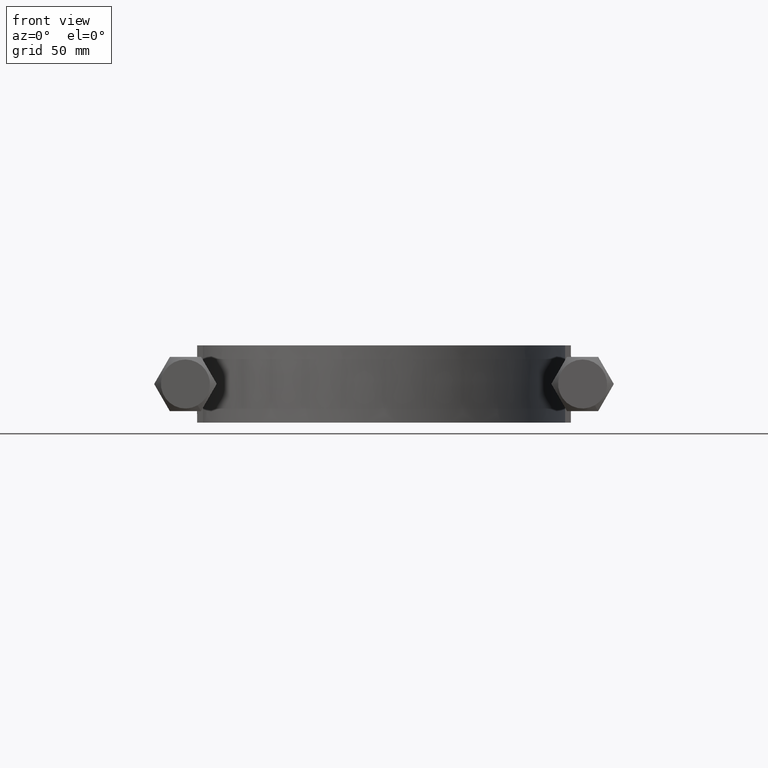
[diagram: clean part render]
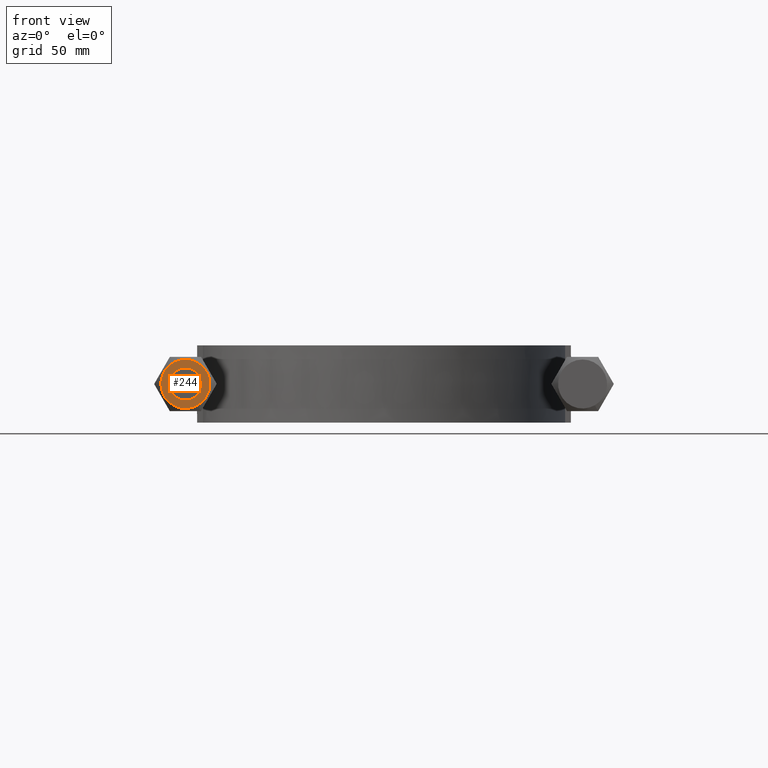
[diagram: same view with one face highlighted and labeled with its STEP entity id]
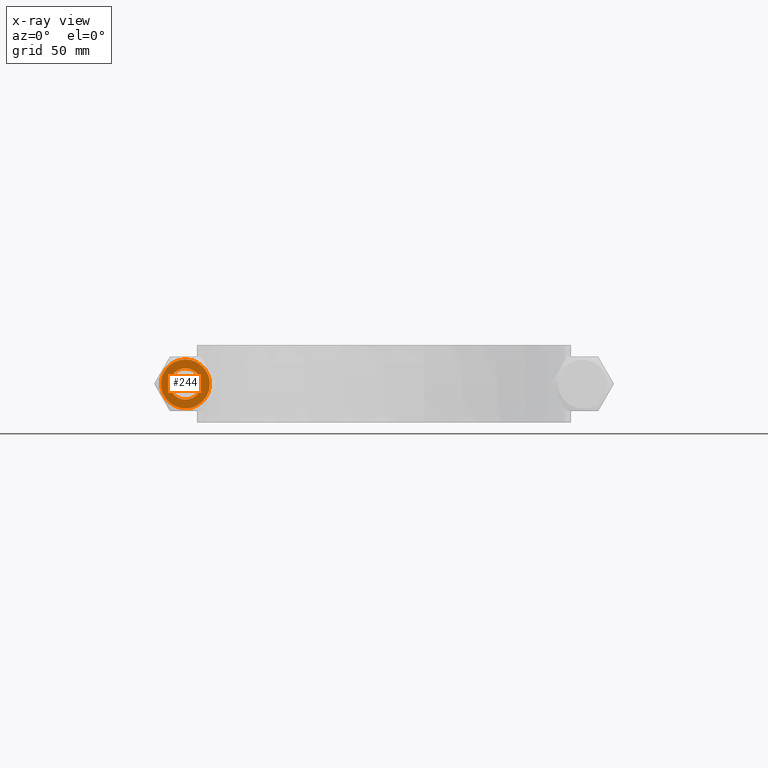
[diagram: x-ray of the same camera — body ghosted, the highlighted face saturated]
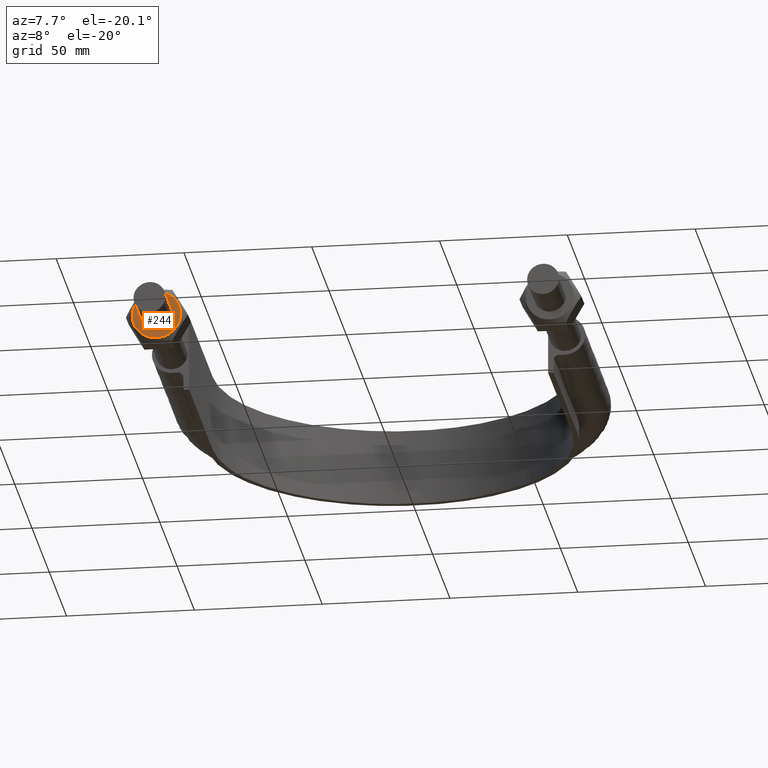
[diagram: same view with one face highlighted and labeled with its STEP entity id]
A machine part, front view. The second image highlights one B-rep face of the part: STEP entity #244.
The next image is the same camera in x-ray: the body ghosted, the highlighted face saturated — about 0% of this face is hidden behind the body in this view.
A second angle (auxiliary view) of the same face is appended — the face is thin or edge-on in the first view.
In plain terms, the highlighted planar face has unit normal (0, 1, -0).
Its self-contained STEP definition (entity closure, byte-faithful):
#244 = ADVANCED_FACE( '', ( #321, #322 ), #323, .F. );
#321 = FACE_OUTER_BOUND( '', #1263, .T. );
#322 = FACE_BOUND( '', #1264, .T. );
#323 = PLANE( '', #1265 );
#1263 = EDGE_LOOP( '', ( #1460 ) );
#1264 = EDGE_LOOP( '', ( #1461 ) );
#1265 = AXIS2_PLACEMENT_3D( '', #1462, #1463, #1464 );
#1460 = ORIENTED_EDGE( '', *, *, #1578, .T. );
#1461 = ORIENTED_EDGE( '', *, *, #1587, .T. );
#1462 = CARTESIAN_POINT( '', ( -83.0621778264910, 20.0000000000000, -10.5000000000000 ) );
#1463 = DIRECTION( '', ( 2.29561811464723E-047, 1.00000000000000, -3.06151625396993E-016 ) );
#1464 = DIRECTION( '', ( 1.00000000000000, -4.86173068582902E-063, 7.49830451388410E-032 ) );
#1578 = EDGE_CURVE( '', #1670, #1670, #1671, .F. );
#1587 = EDGE_CURVE( '', #1685, #1685, #1686, .T. );
#1670 = VERTEX_POINT( '', #2021 );
#1671 = CIRCLE( '', #2022, 9.50000000000066 );
#1685 = VERTEX_POINT( '', #2043 );
#1686 = CIRCLE( '', #2044, 6.05300000000000 );
#2021 = CARTESIAN_POINT( '', ( -76.9999999999999, 20.0000000000000, 9.50000000000062 ) );
#2022 = AXIS2_PLACEMENT_3D( '', #2194, #2195, #2196 );
#2043 = CARTESIAN_POINT( '', ( -76.9999999999999, 20.0000000000000, 6.05299999999999 ) );
#2044 = AXIS2_PLACEMENT_3D( '', #2207, #2208, #2209 );
#2194 = CARTESIAN_POINT( '', ( -76.9999999999999, 20.0000000000000, -3.46169600694594E-014 ) );
#2195 = DIRECTION( '', ( 2.29561811464723E-047, 1.00000000000000, -3.06151625396993E-016 ) );
#2196 = DIRECTION( '', ( 0.000000000000000, 3.06151625396993E-016, 1.00000000000000 ) );
#2207 = CARTESIAN_POINT( '', ( -76.9999999999999, 20.0000000000000, -6.07153155361564E-015 ) );
#2208 = DIRECTION( '', ( 2.29561811464723E-047, 1.00000000000000, -3.06151625396993E-016 ) );
#2209 = DIRECTION( '', ( 0.000000000000000, 3.06151625396993E-016, 1.00000000000000 ) );